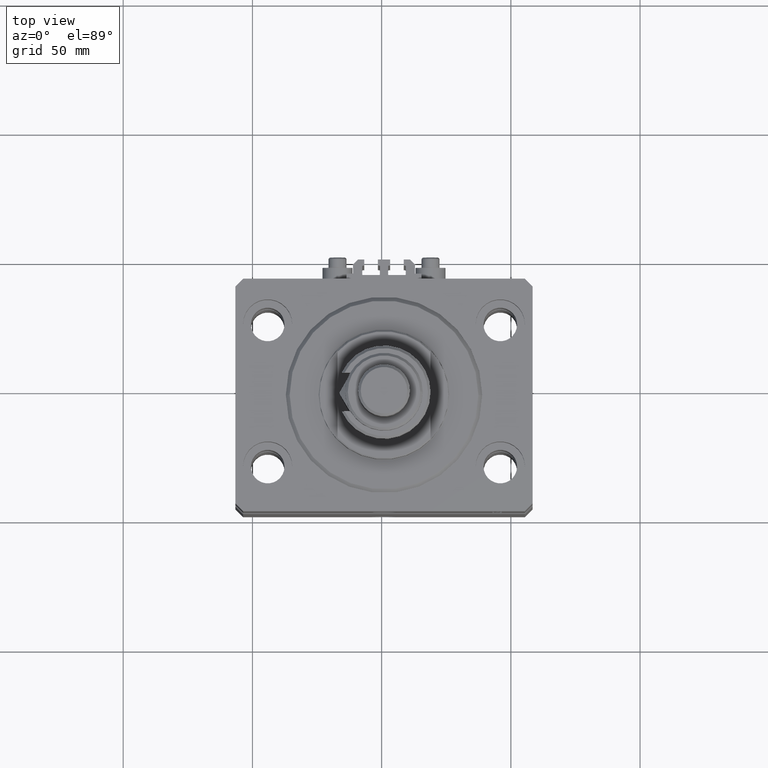
[diagram: clean part render]
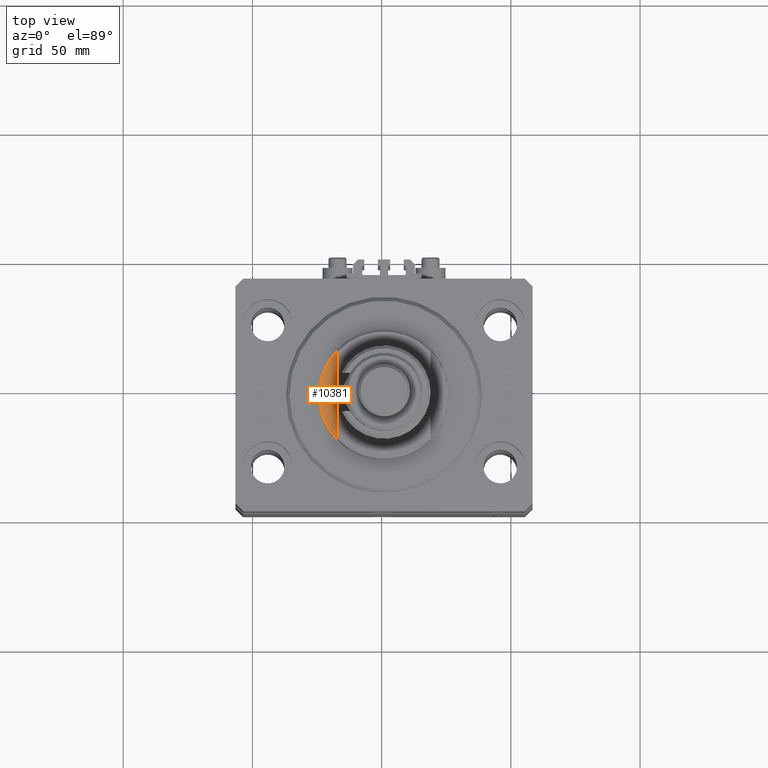
[diagram: same view with one face highlighted and labeled with its STEP entity id]
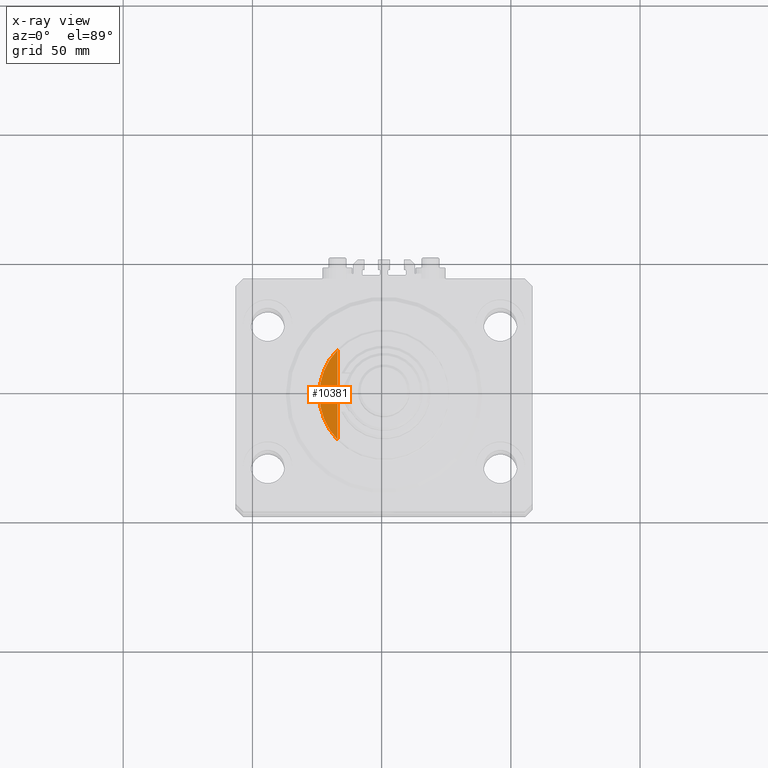
[diagram: x-ray of the same camera — body ghosted, the highlighted face saturated]
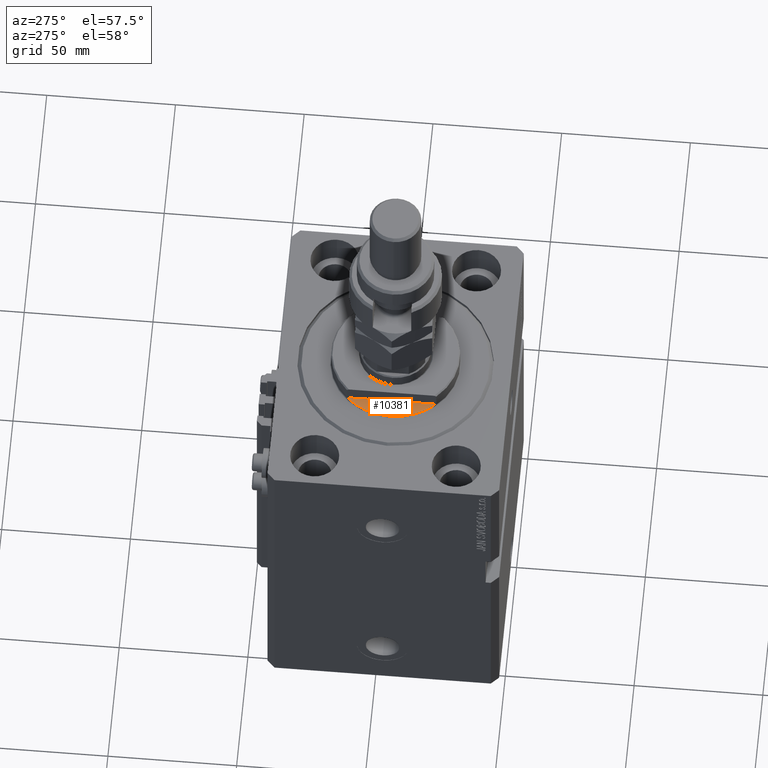
[diagram: same view with one face highlighted and labeled with its STEP entity id]
A machine part, top view. The second image highlights one B-rep face of the part: STEP entity #10381.
The next image is the same camera in x-ray: the body ghosted, the highlighted face saturated — about 0% of this face is hidden behind the body in this view.
A second angle (auxiliary view) of the same face is appended — the face is thin or edge-on in the first view.
In plain terms, the highlighted planar face has unit normal (0, 0, 1).
Its self-contained STEP definition (entity closure, byte-faithful):
#49 = CARTESIAN_POINT ( 'NONE',  ( 0.000000000000000000, 0.000000000000000000, -1.000000000000000000 ) ) ;
#126 = DIRECTION ( 'NONE',  ( 0.000000000000000000, 0.000000000000000000, -1.000000000000000000 ) ) ;
#1073 = AXIS2_PLACEMENT_3D ( 'NONE', #41227, #13639, #5579 ) ;
#2397 = CIRCLE ( 'NONE', #41441, 25.00000000000000000 ) ;
#5579 = DIRECTION ( 'NONE',  ( -1.000000000000000000, 0.000000000000000000, 0.000000000000000000 ) ) ;
#5718 = PLANE ( 'NONE',  #25110 ) ;
#9621 = DIRECTION ( 'NONE',  ( 0.000000000000000000, 0.000000000000000000, -1.000000000000000000 ) ) ;
#9671 = CARTESIAN_POINT ( 'NONE',  ( 18.00000000000000000, 17.34935157289747920, -1.000000000000000000 ) ) ;
#9881 = FACE_OUTER_BOUND ( 'NONE', #33322, .T. ) ;
#10381 = ADVANCED_FACE ( 'NONE', ( #9881 ), #5718, .T. ) ;
#11935 = EDGE_CURVE ( 'NONE', #24918, #35532, #14385, .T. ) ;
#12130 = ORIENTED_EDGE ( 'NONE', *, *, #29431, .F. ) ;
#13639 = DIRECTION ( 'NONE',  ( 0.000000000000000000, 0.000000000000000000, -1.000000000000000000 ) ) ;
#14385 = CIRCLE ( 'NONE', #1073, 25.00000000000000000 ) ;
#15134 = CARTESIAN_POINT ( 'NONE',  ( 25.00000000000000000, 0.000000000000000000, -1.000000000000000000 ) ) ;
#18588 = CARTESIAN_POINT ( 'NONE',  ( 18.00000000000000000, -41.24318125460256113, -1.000000000000000000 ) ) ;
#20692 = DIRECTION ( 'NONE',  ( -1.000000000000000000, 0.000000000000000000, 0.000000000000000000 ) ) ;
#22000 = CARTESIAN_POINT ( 'NONE',  ( 18.00000000000000000, -17.34935157289747920, -1.000000000000000000 ) ) ;
#23543 = ORIENTED_EDGE ( 'NONE', *, *, #11935, .T. ) ;
#24918 = VERTEX_POINT ( 'NONE', #15134 ) ;
#25110 = AXIS2_PLACEMENT_3D ( 'NONE', #49, #9621, #25745 ) ;
#25745 = DIRECTION ( 'NONE',  ( 1.000000000000000000, 0.000000000000000000, 0.000000000000000000 ) ) ;
#28471 = EDGE_CURVE ( 'NONE', #44924, #24918, #2397, .T. ) ;
#29431 = EDGE_CURVE ( 'NONE', #44924, #35532, #42786, .T. ) ;
#33322 = EDGE_LOOP ( 'NONE', ( #44039, #23543, #12130 ) ) ;
#35532 = VERTEX_POINT ( 'NONE', #22000 ) ;
#35798 = CARTESIAN_POINT ( 'NONE',  ( 0.000000000000000000, 0.000000000000000000, -1.000000000000000000 ) ) ;
#38898 = DIRECTION ( 'NONE',  ( 0.000000000000000000, -1.000000000000000000, -0.000000000000000000 ) ) ;
#41227 = CARTESIAN_POINT ( 'NONE',  ( 0.000000000000000000, 0.000000000000000000, -1.000000000000000000 ) ) ;
#41441 = AXIS2_PLACEMENT_3D ( 'NONE', #35798, #126, #20692 ) ;
#41472 = VECTOR ( 'NONE', #38898, 1000.000000000000000 ) ;
#42786 = LINE ( 'NONE', #18588, #41472 ) ;
#44039 = ORIENTED_EDGE ( 'NONE', *, *, #28471, .T. ) ;
#44924 = VERTEX_POINT ( 'NONE', #9671 ) ;